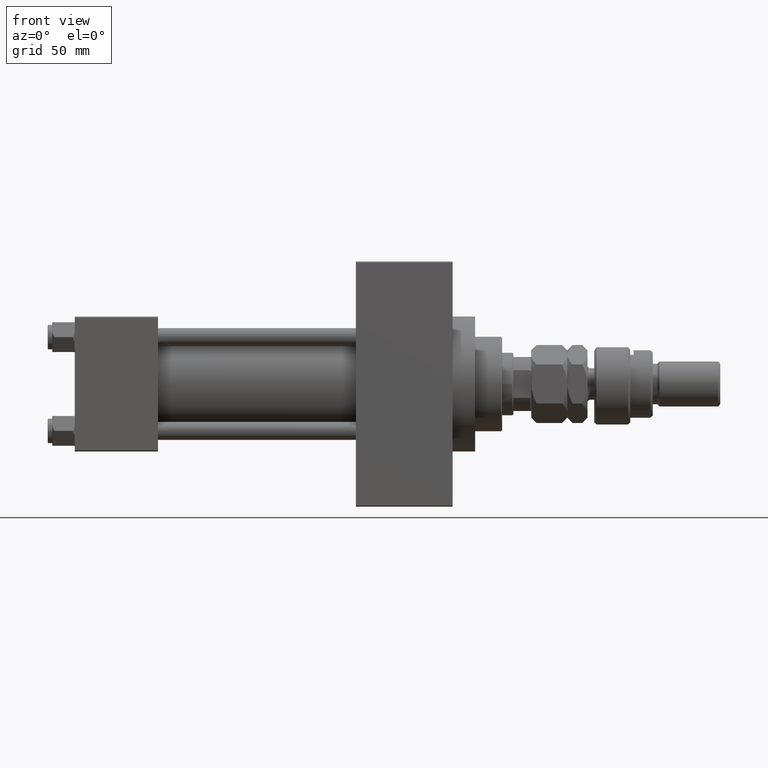
[diagram: clean part render]
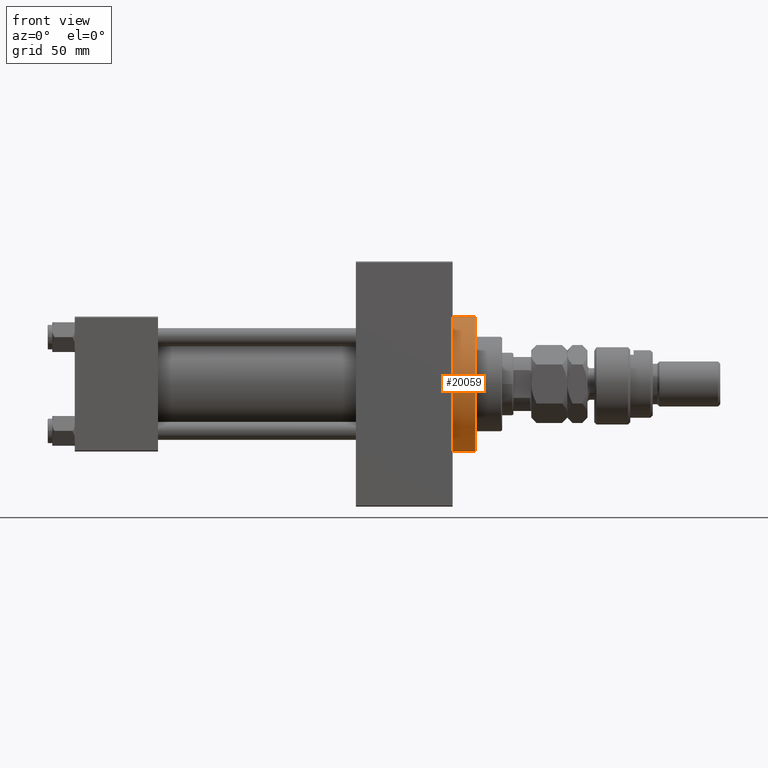
[diagram: same view with one face highlighted and labeled with its STEP entity id]
A machine part, front view. The second image highlights one B-rep face of the part: STEP entity #20059.
In plain terms, the highlighted cylindrical surface (partial cylindrical patch) has radius 30 mm, axis along (-1, -0, -0).
Its self-contained STEP definition (entity closure, byte-faithful):
#750 = CARTESIAN_POINT ( 'NONE',  ( 178.0000000000000000, 0.000000000000000000, 30.00000000000000000 ) ) ;
#1193 = ORIENTED_EDGE ( 'NONE', *, *, #14673, .T. ) ;
#1288 = FACE_OUTER_BOUND ( 'NONE', #8272, .T. ) ;
#2022 = DIRECTION ( 'NONE',  ( 1.000000000000000000, 0.000000000000000000, 0.000000000000000000 ) ) ;
#2281 = DIRECTION ( 'NONE',  ( 0.000000000000000000, 0.000000000000000000, -1.000000000000000000 ) ) ;
#4404 = ORIENTED_EDGE ( 'NONE', *, *, #16281, .F. ) ;
#4616 = CARTESIAN_POINT ( 'NONE',  ( 178.0000000000000000, 3.673940397442059178E-15, -30.00000000000000000 ) ) ;
#5510 = LINE ( 'NONE', #750, #9361 ) ;
#5963 = ORIENTED_EDGE ( 'NONE', *, *, #47821, .F. ) ;
#6457 = AXIS2_PLACEMENT_3D ( 'NONE', #45786, #42597, #49756 ) ;
#6799 = VERTEX_POINT ( 'NONE', #11775 ) ;
#8272 = EDGE_LOOP ( 'NONE', ( #4404, #5963, #14814, #1193, #8796 ) ) ;
#8796 = ORIENTED_EDGE ( 'NONE', *, *, #22904, .T. ) ;
#9361 = VECTOR ( 'NONE', #21673, 1000.000000000000000 ) ;
#9857 = CIRCLE ( 'NONE', #6457, 30.00000000000000000 ) ;
#10518 = AXIS2_PLACEMENT_3D ( 'NONE', #38328, #2022, #2281 ) ;
#11775 = CARTESIAN_POINT ( 'NONE',  ( 167.9999999999999716, 0.000000000000000000, 30.00000000000000000 ) ) ;
#12362 = CARTESIAN_POINT ( 'NONE',  ( 178.0000000000000000, 0.000000000000000000, 30.00000000000000000 ) ) ;
#14124 = DIRECTION ( 'NONE',  ( 1.000000000000000000, 0.000000000000000000, 0.000000000000000000 ) ) ;
#14673 = EDGE_CURVE ( 'NONE', #6799, #30046, #9857, .T. ) ;
#14814 = ORIENTED_EDGE ( 'NONE', *, *, #23553, .T. ) ;
#16281 = EDGE_CURVE ( 'NONE', #38916, #19122, #31925, .T. ) ;
#18347 = CARTESIAN_POINT ( 'NONE',  ( 167.9999999999999716, 0.000000000000000000, 0.000000000000000000 ) ) ;
#19122 = VERTEX_POINT ( 'NONE', #21168 ) ;
#19194 = CARTESIAN_POINT ( 'NONE',  ( 167.9999999999999716, -30.00000000000000000, 0.000000000000000000 ) ) ;
#20059 = ADVANCED_FACE ( 'NONE', ( #1288 ), #22219, .T. ) ;
#21168 = CARTESIAN_POINT ( 'NONE',  ( 167.9999999999999716, 3.673940397442059178E-15, -30.00000000000000000 ) ) ;
#21673 = DIRECTION ( 'NONE',  ( -1.000000000000000000, -0.000000000000000000, -0.000000000000000000 ) ) ;
#21962 = DIRECTION ( 'NONE',  ( 0.000000000000000000, 0.000000000000000000, 1.000000000000000000 ) ) ;
#21998 = CIRCLE ( 'NONE', #39780, 30.00000000000000000 ) ;
#22219 = CYLINDRICAL_SURFACE ( 'NONE', #26951, 30.00000000000000000 ) ;
#22904 = EDGE_CURVE ( 'NONE', #30046, #19122, #21998, .T. ) ;
#23553 = EDGE_CURVE ( 'NONE', #41466, #6799, #5510, .T. ) ;
#25687 = CIRCLE ( 'NONE', #10518, 30.00000000000000000 ) ;
#26951 = AXIS2_PLACEMENT_3D ( 'NONE', #34407, #30161, #21962 ) ;
#30046 = VERTEX_POINT ( 'NONE', #19194 ) ;
#30161 = DIRECTION ( 'NONE',  ( -1.000000000000000000, -0.000000000000000000, -0.000000000000000000 ) ) ;
#30261 = DIRECTION ( 'NONE',  ( 0.000000000000000000, 0.000000000000000000, -1.000000000000000000 ) ) ;
#31925 = LINE ( 'NONE', #4616, #52212 ) ;
#34407 = CARTESIAN_POINT ( 'NONE',  ( 178.0000000000000000, 0.000000000000000000, 0.000000000000000000 ) ) ;
#38328 = CARTESIAN_POINT ( 'NONE',  ( 178.0000000000000000, 0.000000000000000000, 0.000000000000000000 ) ) ;
#38916 = VERTEX_POINT ( 'NONE', #51882 ) ;
#39780 = AXIS2_PLACEMENT_3D ( 'NONE', #18347, #14124, #30261 ) ;
#41466 = VERTEX_POINT ( 'NONE', #12362 ) ;
#42597 = DIRECTION ( 'NONE',  ( 1.000000000000000000, 0.000000000000000000, 0.000000000000000000 ) ) ;
#45786 = CARTESIAN_POINT ( 'NONE',  ( 167.9999999999999716, 0.000000000000000000, 0.000000000000000000 ) ) ;
#47821 = EDGE_CURVE ( 'NONE', #41466, #38916, #25687, .T. ) ;
#48129 = DIRECTION ( 'NONE',  ( -1.000000000000000000, -0.000000000000000000, -0.000000000000000000 ) ) ;
#49756 = DIRECTION ( 'NONE',  ( 0.000000000000000000, 0.000000000000000000, -1.000000000000000000 ) ) ;
#51882 = CARTESIAN_POINT ( 'NONE',  ( 178.0000000000000000, 3.673940397442059178E-15, -30.00000000000000000 ) ) ;
#52212 = VECTOR ( 'NONE', #48129, 1000.000000000000000 ) ;